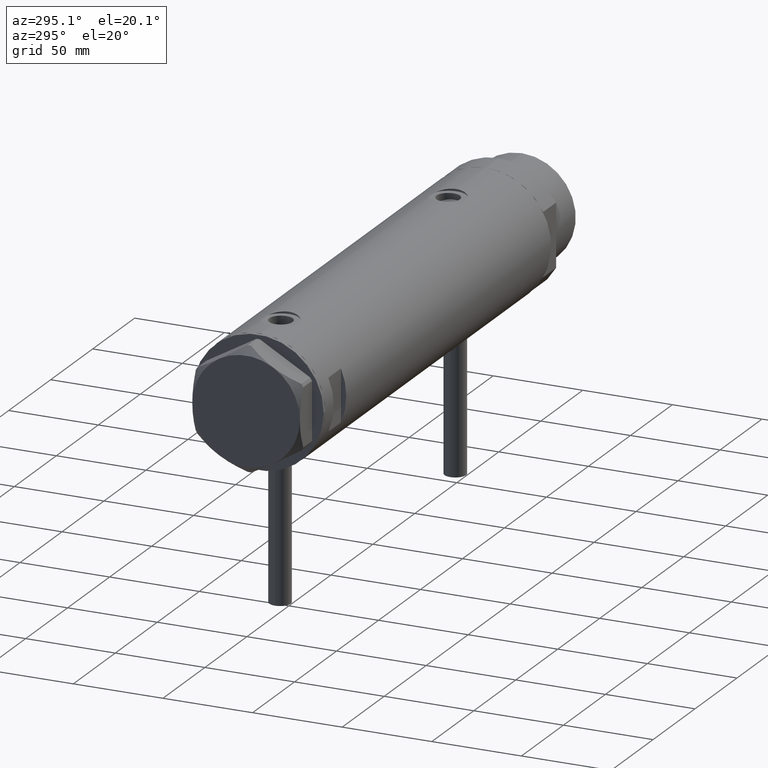
[diagram: clean part render]
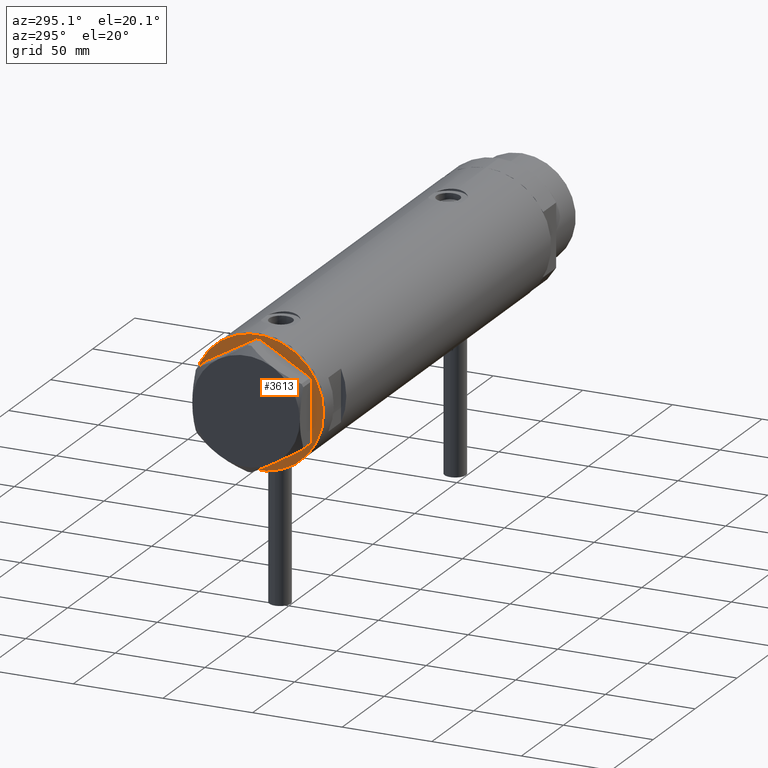
[diagram: same view with one face highlighted and labeled with its STEP entity id]
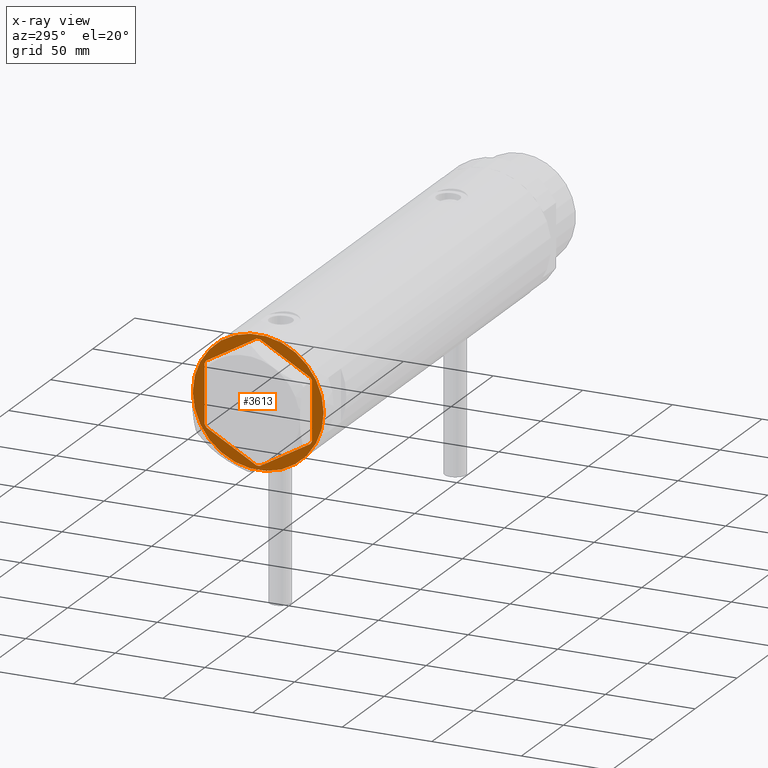
[diagram: x-ray of the same camera — body ghosted, the highlighted face saturated]
A machine part, auxiliary view. The second image highlights one B-rep face of the part: STEP entity #3613.
The next image is the same camera in x-ray: the body ghosted, the highlighted face saturated — about 0% of this face is hidden behind the body in this view.
In plain terms, the highlighted planar face has unit normal (1, 0, -0).
Its self-contained STEP definition (entity closure, byte-faithful):
#18 = VERTEX_POINT ( 'NONE', #4512 ) ;
#93 = ORIENTED_EDGE ( 'NONE', *, *, #3734, .F. ) ;
#119 = ORIENTED_EDGE ( 'NONE', *, *, #1584, .T. ) ;
#121 = PLANE ( 'NONE',  #2421 ) ;
#130 = ORIENTED_EDGE ( 'NONE', *, *, #1774, .F. ) ;
#220 = EDGE_CURVE ( 'NONE', #448, #890, #561, .T. ) ;
#369 = LINE ( 'NONE', #4386, #464 ) ;
#399 = ORIENTED_EDGE ( 'NONE', *, *, #4227, .T. ) ;
#405 = VERTEX_POINT ( 'NONE', #4466 ) ;
#448 = VERTEX_POINT ( 'NONE', #3118 ) ;
#464 = VECTOR ( 'NONE', #1820, 1000.000000000000000 ) ;
#510 = LINE ( 'NONE', #4235, #4639 ) ;
#536 = ORIENTED_EDGE ( 'NONE', *, *, #3941, .T. ) ;
#552 = DIRECTION ( 'NONE',  ( 0.000000000000000000, -1.000000000000000000, 0.000000000000000000 ) ) ;
#561 = LINE ( 'NONE', #588, #3396 ) ;
#569 = EDGE_CURVE ( 'NONE', #3985, #18, #2056, .T. ) ;
#588 = CARTESIAN_POINT ( 'NONE',  ( 0.000000000000000000, 34.64101615137754209, 0.000000000000000000 ) ) ;
#689 = VERTEX_POINT ( 'NONE', #939 ) ;
#704 = VECTOR ( 'NONE', #4634, 1000.000000000000227 ) ;
#762 = VECTOR ( 'NONE', #552, 1000.000000000000000 ) ;
#808 = VERTEX_POINT ( 'NONE', #4697 ) ;
#890 = VERTEX_POINT ( 'NONE', #1714 ) ;
#895 = EDGE_CURVE ( 'NONE', #3654, #1722, #3591, .T. ) ;
#899 = VERTEX_POINT ( 'NONE', #3279 ) ;
#915 = CARTESIAN_POINT ( 'NONE',  ( -30.00000000000000000, -17.32050807568877460, 0.000000000000000000 ) ) ;
#924 = CARTESIAN_POINT ( 'NONE',  ( -5.841958412462644145E-15, -34.64101615137753498, 0.000000000000000000 ) ) ;
#939 = CARTESIAN_POINT ( 'NONE',  ( 36.50000000000000000, 0.000000000000000000, 0.000000000000000000 ) ) ;
#974 = ORIENTED_EDGE ( 'NONE', *, *, #4267, .F. ) ;
#1021 = AXIS2_PLACEMENT_3D ( 'NONE', #2458, #1619, #1648 ) ;
#1100 = ORIENTED_EDGE ( 'NONE', *, *, #1139, .F. ) ;
#1132 = CARTESIAN_POINT ( 'NONE',  ( 0.9699484522385750651, -34.08101615137752560, 0.000000000000000000 ) ) ;
#1139 = EDGE_CURVE ( 'NONE', #405, #689, #2079, .T. ) ;
#1143 = ORIENTED_EDGE ( 'NONE', *, *, #1445, .T. ) ;
#1307 = AXIS2_PLACEMENT_3D ( 'NONE', #4212, #2437, #2459 ) ;
#1341 = LINE ( 'NONE', #2417, #704 ) ;
#1355 = ORIENTED_EDGE ( 'NONE', *, *, #895, .T. ) ;
#1399 = DIRECTION ( 'NONE',  ( 0.5000000000000019984, -0.8660254037844375974, -0.000000000000000000 ) ) ;
#1445 = EDGE_CURVE ( 'NONE', #3985, #890, #4663, .T. ) ;
#1511 = DIRECTION ( 'NONE',  ( -1.000000000000000000, 0.000000000000000000, -0.000000000000000000 ) ) ;
#1584 = EDGE_CURVE ( 'NONE', #2076, #2663, #369, .T. ) ;
#1619 = DIRECTION ( 'NONE',  ( 0.000000000000000000, 0.000000000000000000, -1.000000000000000000 ) ) ;
#1638 = VERTEX_POINT ( 'NONE', #4125 ) ;
#1648 = DIRECTION ( 'NONE',  ( -1.000000000000000000, 0.000000000000000000, 0.000000000000000000 ) ) ;
#1685 = CARTESIAN_POINT ( 'NONE',  ( -30.00000000000000000, 17.32050807568877460, 0.000000000000000000 ) ) ;
#1714 = CARTESIAN_POINT ( 'NONE',  ( -29.03005154776141339, 17.88050807568878042, 0.000000000000000000 ) ) ;
#1722 = VERTEX_POINT ( 'NONE', #4579 ) ;
#1774 = EDGE_CURVE ( 'NONE', #1638, #1722, #510, .T. ) ;
#1789 = ORIENTED_EDGE ( 'NONE', *, *, #2971, .F. ) ;
#1820 = DIRECTION ( 'NONE',  ( -1.000000000000000000, -0.000000000000000000, -0.000000000000000000 ) ) ;
#1849 = CARTESIAN_POINT ( 'NONE',  ( 0.000000000000000000, 0.000000000000000000, 0.000000000000000000 ) ) ;
#1911 = ORIENTED_EDGE ( 'NONE', *, *, #4112, .T. ) ;
#1958 = ORIENTED_EDGE ( 'NONE', *, *, #220, .F. ) ;
#2040 = EDGE_LOOP ( 'NONE', ( #1789, #1100 ) ) ;
#2056 = LINE ( 'NONE', #1685, #762 ) ;
#2076 = VERTEX_POINT ( 'NONE', #1132 ) ;
#2079 = CIRCLE ( 'NONE', #1307, 36.50000000000000000 ) ;
#2095 = LINE ( 'NONE', #915, #4747 ) ;
#2106 = VECTOR ( 'NONE', #3135, 1000.000000000000000 ) ;
#2115 = CARTESIAN_POINT ( 'NONE',  ( -29.51502577388068715, -17.04050807568881254, 0.000000000000000000 ) ) ;
#2160 = CARTESIAN_POINT ( 'NONE',  ( -30.00000000000000000, 16.20050807568875584, 0.000000000000000000 ) ) ;
#2227 = DIRECTION ( 'NONE',  ( -0.5000000000000012212, -0.8660254037844380415, -0.000000000000000000 ) ) ;
#2236 = CARTESIAN_POINT ( 'NONE',  ( 29.03005154776139207, 17.88050807568879463, 0.000000000000000000 ) ) ;
#2342 = VERTEX_POINT ( 'NONE', #4764 ) ;
#2388 = CARTESIAN_POINT ( 'NONE',  ( -29.51502577388069071, 17.04050807568879833, 0.000000000000000000 ) ) ;
#2417 = CARTESIAN_POINT ( 'NONE',  ( 29.99999999999999289, 17.32050807568878170, 0.000000000000000000 ) ) ;
#2418 = DIRECTION ( 'NONE',  ( 0.5000000000000008882, 0.8660254037844381525, -0.000000000000000000 ) ) ;
#2421 = AXIS2_PLACEMENT_3D ( 'NONE', #1849, #3717, #1511 ) ;
#2437 = DIRECTION ( 'NONE',  ( 0.000000000000000000, 0.000000000000000000, -1.000000000000000000 ) ) ;
#2458 = CARTESIAN_POINT ( 'NONE',  ( 0.000000000000000000, 0.000000000000000000, 0.000000000000000000 ) ) ;
#2459 = DIRECTION ( 'NONE',  ( -1.000000000000000000, 0.000000000000000000, 0.000000000000000000 ) ) ;
#2655 = CARTESIAN_POINT ( 'NONE',  ( 29.51502577388068715, -17.04050807568881254, 0.000000000000000000 ) ) ;
#2663 = VERTEX_POINT ( 'NONE', #3328 ) ;
#2700 = CARTESIAN_POINT ( 'NONE',  ( 0.000000000000000000, 34.08101615137753981, 0.000000000000000000 ) ) ;
#2957 = ORIENTED_EDGE ( 'NONE', *, *, #4673, .F. ) ;
#2971 = EDGE_CURVE ( 'NONE', #689, #405, #3492, .T. ) ;
#2981 = FACE_BOUND ( 'NONE', #4406, .T. ) ;
#3048 = ORIENTED_EDGE ( 'NONE', *, *, #569, .F. ) ;
#3106 = DIRECTION ( 'NONE',  ( 1.000000000000000000, -0.000000000000000000, -0.000000000000000000 ) ) ;
#3118 = CARTESIAN_POINT ( 'NONE',  ( -0.9699484522385684038, 34.08101615137753981, 0.000000000000000000 ) ) ;
#3135 = DIRECTION ( 'NONE',  ( 0.8660254037844389297, 0.4999999999999996114, 0.000000000000000000 ) ) ;
#3209 = DIRECTION ( 'NONE',  ( -0.8660254037844387076, -0.4999999999999998335, 0.000000000000000000 ) ) ;
#3279 = CARTESIAN_POINT ( 'NONE',  ( 29.03005154776141694, -17.88050807568878042, 0.000000000000000000 ) ) ;
#3328 = CARTESIAN_POINT ( 'NONE',  ( -0.9699484522385886098, -34.08101615137752560, 0.000000000000000000 ) ) ;
#3329 = VECTOR ( 'NONE', #2418, 1000.000000000000000 ) ;
#3376 = LINE ( 'NONE', #2655, #4575 ) ;
#3396 = VECTOR ( 'NONE', #3209, 1000.000000000000114 ) ;
#3431 = FACE_OUTER_BOUND ( 'NONE', #2040, .T. ) ;
#3492 = CIRCLE ( 'NONE', #1021, 36.50000000000000000 ) ;
#3545 = DIRECTION ( 'NONE',  ( -3.004629197474318063E-16, 1.000000000000000000, 0.000000000000000000 ) ) ;
#3591 = LINE ( 'NONE', #4724, #4785 ) ;
#3601 = DIRECTION ( 'NONE',  ( -0.5000000000000012212, 0.8660254037844380415, -0.000000000000000000 ) ) ;
#3613 = ADVANCED_FACE ( 'NONE', ( #2981, #3431 ), #121, .F. ) ;
#3654 = VERTEX_POINT ( 'NONE', #2236 ) ;
#3717 = DIRECTION ( 'NONE',  ( 0.000000000000000000, 0.000000000000000000, -1.000000000000000000 ) ) ;
#3734 = EDGE_CURVE ( 'NONE', #3654, #808, #1341, .T. ) ;
#3906 = LINE ( 'NONE', #2700, #4185 ) ;
#3941 = EDGE_CURVE ( 'NONE', #2342, #18, #4735, .T. ) ;
#3985 = VERTEX_POINT ( 'NONE', #2160 ) ;
#4112 = EDGE_CURVE ( 'NONE', #1638, #899, #3376, .T. ) ;
#4125 = CARTESIAN_POINT ( 'NONE',  ( 30.00000000000000355, -16.20050807568876294, 0.000000000000000000 ) ) ;
#4185 = VECTOR ( 'NONE', #3106, 1000.000000000000000 ) ;
#4212 = CARTESIAN_POINT ( 'NONE',  ( 0.000000000000000000, 0.000000000000000000, 0.000000000000000000 ) ) ;
#4227 = EDGE_CURVE ( 'NONE', #448, #808, #3906, .T. ) ;
#4235 = CARTESIAN_POINT ( 'NONE',  ( 30.00000000000000355, -17.32050807568877460, 0.000000000000000000 ) ) ;
#4267 = EDGE_CURVE ( 'NONE', #2076, #899, #4529, .T. ) ;
#4342 = VECTOR ( 'NONE', #3601, 999.9999999999998863 ) ;
#4386 = CARTESIAN_POINT ( 'NONE',  ( 0.000000000000000000, -34.08101615137752560, 0.000000000000000000 ) ) ;
#4406 = EDGE_LOOP ( 'NONE', ( #93, #1355, #130, #1911, #974, #119, #2957, #536, #3048, #1143, #1958, #399 ) ) ;
#4466 = CARTESIAN_POINT ( 'NONE',  ( -36.50000000000000000, 4.469960816887838430E-15, 0.000000000000000000 ) ) ;
#4512 = CARTESIAN_POINT ( 'NONE',  ( -30.00000000000000000, -16.20050807568876294, 0.000000000000000000 ) ) ;
#4529 = LINE ( 'NONE', #924, #2106 ) ;
#4575 = VECTOR ( 'NONE', #2227, 999.9999999999998863 ) ;
#4579 = CARTESIAN_POINT ( 'NONE',  ( 29.99999999999999289, 16.20050807568875584, 0.000000000000000000 ) ) ;
#4592 = DIRECTION ( 'NONE',  ( 0.8660254037844387076, -0.4999999999999997780, 0.000000000000000000 ) ) ;
#4634 = DIRECTION ( 'NONE',  ( -0.8660254037844387076, 0.4999999999999997780, 0.000000000000000000 ) ) ;
#4639 = VECTOR ( 'NONE', #3545, 1000.000000000000000 ) ;
#4663 = LINE ( 'NONE', #2388, #3329 ) ;
#4673 = EDGE_CURVE ( 'NONE', #2342, #2663, #2095, .T. ) ;
#4697 = CARTESIAN_POINT ( 'NONE',  ( 0.9699484522385712904, 34.08101615137753981, 0.000000000000000000 ) ) ;
#4724 = CARTESIAN_POINT ( 'NONE',  ( 29.51502577388065873, 17.04050807568883386, 0.000000000000000000 ) ) ;
#4735 = LINE ( 'NONE', #2115, #4342 ) ;
#4747 = VECTOR ( 'NONE', #4592, 1000.000000000000227 ) ;
#4764 = CARTESIAN_POINT ( 'NONE',  ( -29.03005154776141339, -17.88050807568878042, 0.000000000000000000 ) ) ;
#4785 = VECTOR ( 'NONE', #1399, 999.9999999999998863 ) ;